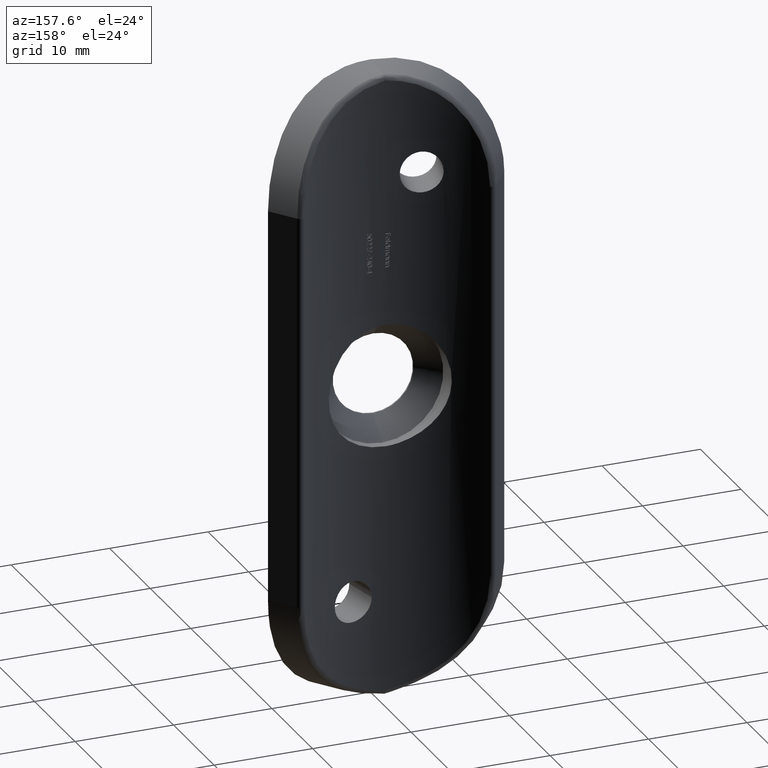
[diagram: clean part render]
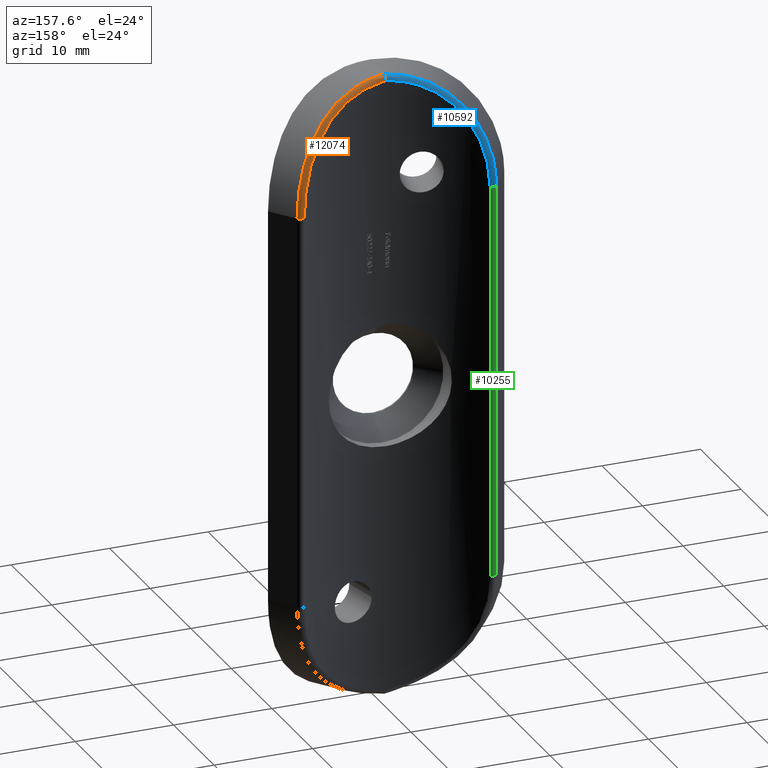
[diagram: same view with three faces highlighted in distinct colors, each labeled with its STEP entity id]
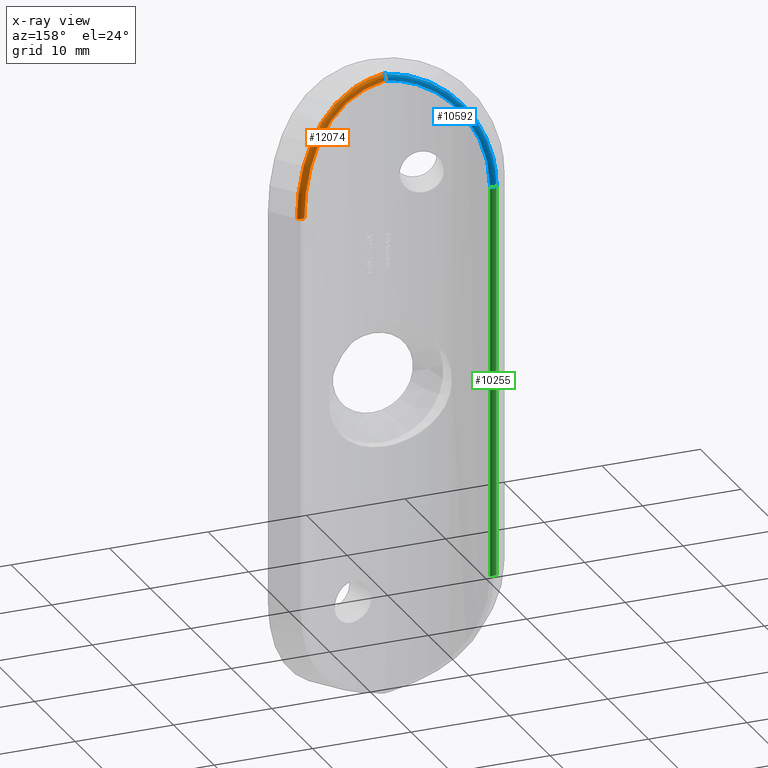
[diagram: x-ray of the same camera — body ghosted, the three highlighted faces saturated]
A machine part, auxiliary view with three faces highlighted in distinct colors.
The next image is the same camera in x-ray (body ghosted, the three faces saturated) — at least one of them is partly hidden behind the body in this view.
Their STEP definitions:

[orange] entity #12074 — the highlighted face is a freeform B-spline surface patch.
#50 = CARTESIAN_POINT ( 'NONE',  ( 9.572176795097250945, 6.108296295516240981, 23.94905101762006083 ) ) ;
#57 = CARTESIAN_POINT ( 'NONE',  ( 9.622872625073005892, 6.709967656135484404, 22.55737691705509818 ) ) ;
#92 = CARTESIAN_POINT ( 'NONE',  ( 9.236289791145132710, 5.900570151001626407, 24.97770794052638976 ) ) ;
#145 = CARTESIAN_POINT ( 'NONE',  ( 9.554211031424031830, 6.662456624294850194, 22.91443900291317348 ) ) ;
#187 = CARTESIAN_POINT ( 'NONE',  ( 9.218997879929295536, 5.890139329783062649, 25.02270815151014816 ) ) ;
#216 = CARTESIAN_POINT ( 'NONE',  ( 10.12717891536658854, 6.471195106964714228, 20.00000000000000000 ) ) ;
#235 = CARTESIAN_POINT ( 'NONE',  ( 2.655073436433441625, 3.895923824982222339, 31.17152731638226726 ) ) ;
#279 = CARTESIAN_POINT ( 'NONE',  ( 3.312259893531533272, 4.015551761706770861, 30.91518436101496192 ) ) ;
#302 = CARTESIAN_POINT ( 'NONE',  ( -2.154067083787456562E-12, 3.700000000000003286, 31.47026623506271648 ) ) ;
#320 = CARTESIAN_POINT ( 'NONE',  ( 6.245142420283990248, 4.887077536826729407, 29.03988094808996578 ) ) ;
#362 = CARTESIAN_POINT ( 'NONE',  ( 5.205480699083707030, 4.521835084770185809, 29.34296601969696283 ) ) ;
#416 = CIRCLE ( 'NONE', #2535, 0.5000000000000004441 ) ;
#444 =( BOUNDED_SURFACE ( )  B_SPLINE_SURFACE ( 3, 2, ( 
 ( #8031, #10102, #12151 ),
 ( #12057, #4185, #4096 ),
 ( #6147, #10058, #5095 ),
 ( #6061, #57, #9129 ),
 ( #12101, #145, #6102 ),
 ( #7098, #1096, #11134 ),
 ( #3122, #1191, #7144 ),
 ( #1150, #8166, #187 ),
 ( #2144, #10189, #11226 ),
 ( #11182, #6194, #9220 ),
 ( #3217, #6365, #12374 ),
 ( #5443, #8430, #9354 ),
 ( #11361, #4360, #6404 ),
 ( #3399, #4278, #6332 ),
 ( #7317, #320, #2236 ),
 ( #362, #2407, #7234 ),
 ( #7363, #10446, #1332 ),
 ( #5363, #2365, #8352 ),
 ( #12464, #3354, #6283 ),
 ( #9310, #279, #2317 ),
 ( #1368, #235, #7279 ),
 ( #8395, #9265, #9399 ),
 ( #10367, #11401, #10411 ),
 ( #1234, #9447, #5317 ) ),
 .UNSPECIFIED., .F., .F., .T. ) 
 B_SPLINE_SURFACE_WITH_KNOTS ( ( 4, 2, 2, 2, 2, 2, 2, 2, 2, 2, 2, 4 ),
 ( 3, 3 ),
 ( 0.000000000000000000, 0.002112389114971083542, 0.003168583672456625096, 0.004224778229942167083, 0.006337167344913250192, 0.007393361902398792179, 0.008449556459884334167, 0.01056194557485541641, 0.01161814013234095840, 0.01267433468982650038, 0.01478672380479758436, 0.01689911291976866833 ),
 ( 0.000000000000000000, 1.000000000000000000 ),
 .UNSPECIFIED. ) 
 GEOMETRIC_REPRESENTATION_ITEM ( )  RATIONAL_B_SPLINE_SURFACE ( (
 ( 1.000000000000000000, 0.7172232720025314423, 1.000000000000000000),
 ( 1.000000000000000000, 0.7172183501608412337, 1.000000000000000000),
 ( 1.000000000000000000, 0.7185148842174152728, 1.000000000000000000),
 ( 1.000000000000000000, 0.7220878857731577449, 1.000000000000000000),
 ( 1.000000000000000000, 0.7235490627582393808, 1.000000000000000000),
 ( 1.000000000000000000, 0.7269319563348083379, 1.000000000000000000),
 ( 1.000000000000000000, 0.7288655653429645387, 1.000000000000000000),
 ( 1.000000000000000000, 0.7350939807003735726, 1.000000000000000000),
 ( 1.000000000000000000, 0.7398153492750639826, 1.000000000000000000),
 ( 1.000000000000000000, 0.7468742275834167055, 1.000000000000000000),
 ( 1.000000000000000000, 0.7492227011589491781, 1.000000000000000000),
 ( 1.000000000000000000, 0.7537500991776644454, 1.000000000000000000),
 ( 1.000000000000000000, 0.7559211380154563509, 1.000000000000000000),
 ( 1.000000000000000000, 0.7617928543610895664, 1.000000000000000000),
 ( 1.000000000000000000, 0.7649044285686612543, 1.000000000000000000),
 ( 1.000000000000000000, 0.7675443016062143409, 1.000000000000000000),
 ( 1.000000000000000000, 0.7680869166604771259, 1.000000000000000000),
 ( 1.000000000000000000, 0.7683549639556661592, 1.000000000000000000),
 ( 1.000000000000000000, 0.7680828359206659517, 1.000000000000000000),
 ( 1.000000000000000000, 0.7659795932634994031, 1.000000000000000000),
 ( 1.000000000000000000, 0.7628586781263221317, 1.000000000000000000),
 ( 1.000000000000000000, 0.7529109112341233478, 1.000000000000000000),
 ( 1.000000000000000000, 0.7461709494799191322, 1.000000000000000000),
 ( 1.000000000000000000, 0.7379990787431908172, 1.000000000000000000) ) ) 
 REPRESENTATION_ITEM ( '' )  SURFACE ( )  );
#664 = EDGE_CURVE ( 'NONE', #7196, #9322, #416, .T. ) ;
#714 = CARTESIAN_POINT ( 'NONE',  ( 9.390755499543004703, 6.558910488688065143, 21.38376216912643102 ) ) ;
#727 = CARTESIAN_POINT ( 'NONE',  ( 9.441128890499024706, 6.593367695859268629, 20.00000000000000000 ) ) ;
#1045 = CARTESIAN_POINT ( 'NONE',  ( 6.998838513618312440, 4.749969719537173063, 28.54597954356985667 ) ) ;
#1089 = CARTESIAN_POINT ( 'NONE',  ( 8.276384315391476676, 5.363297702628000430, 26.86292557208184917 ) ) ;
#1096 = CARTESIAN_POINT ( 'NONE',  ( 9.388038383834942380, 6.549999213025272660, 23.62275142966136698 ) ) ;
#1150 = CARTESIAN_POINT ( 'NONE',  ( 8.594485261911218643, 6.054495856384555452, 24.81342864533586123 ) ) ;
#1184 = CARTESIAN_POINT ( 'NONE',  ( 9.670500822432888555, 6.170714829862242290, 23.59779996299899452 ) ) ;
#1191 = CARTESIAN_POINT ( 'NONE',  ( 9.290104061794043133, 6.484777165487949802, 23.97542067487028206 ) ) ;
#1234 = CARTESIAN_POINT ( 'NONE',  ( -0.1597076993794145361, 3.700756887896746505, 31.36828013336921117 ) ) ;
#1332 = CARTESIAN_POINT ( 'NONE',  ( 5.302934992376822088, 4.119565799163720676, 29.95470408451958377 ) ) ;
#1368 = CARTESIAN_POINT ( 'NONE',  ( 2.525070350010377496, 3.876918051528230880, 30.76810239192451846 ) ) ;
#1531 = VERTEX_POINT ( 'NONE', #3983 ) ;
#1713 = CARTESIAN_POINT ( 'NONE',  ( 7.390793985087870333, 5.406034407769334749, 27.07572169385642624 ) ) ;
#2093 = CARTESIAN_POINT ( 'NONE',  ( 7.670246256790045791, 5.059910319933140777, 27.73525308564031988 ) ) ;
#2144 = CARTESIAN_POINT ( 'NONE',  ( 8.330846162076598560, 5.899050358616710454, 25.44346187952711347 ) ) ;
#2234 = EDGE_LOOP ( 'NONE', ( #2993, #7021, #7029, #10898 ) ) ;
#2236 = CARTESIAN_POINT ( 'NONE',  ( 6.434489455530427726, 4.514859975475179255, 29.09591892318240625 ) ) ;
#2317 = CARTESIAN_POINT ( 'NONE',  ( 3.417693122737476052, 3.614533170411150742, 30.98228990465367971 ) ) ;
#2365 = CARTESIAN_POINT ( 'NONE',  ( 4.552356721937372619, 4.322414875989259109, 30.26907346118207442 ) ) ;
#2407 = CARTESIAN_POINT ( 'NONE',  ( 5.430277632865304405, 4.594655389540906576, 29.68749767993011091 ) ) ;
#2535 = AXIS2_PLACEMENT_3D ( 'NONE', #7385, #8321, #10340 ) ;
#2724 = CARTESIAN_POINT ( 'NONE',  ( 1.367225302750658678, 3.752117385400979721, 31.09434416446330118 ) ) ;
#2768 = CARTESIAN_POINT ( 'NONE',  ( 3.323786737820741521, 4.019659497945220039, 30.45339368198925456 ) ) ;
#2812 = CARTESIAN_POINT ( 'NONE',  ( 2.694734062044981115, 3.903594808067625266, 30.70712680308379561 ) ) ;
#2818 = CARTESIAN_POINT ( 'NONE',  ( -2.450987520852121701E-15, 3.700000000000003286, 31.34717079002204798 ) ) ;
#2993 = ORIENTED_EDGE ( 'NONE', *, *, #8098, .F. ) ;
#3112 = CARTESIAN_POINT ( 'NONE',  ( 4.786837390412624238, 3.962737914211535539, 30.28040607774899229 ) ) ;
#3122 = CARTESIAN_POINT ( 'NONE',  ( 8.913713998312255526, 6.250217411443363069, 23.82000786858119312 ) ) ;
#3217 = CARTESIAN_POINT ( 'NONE',  ( 7.680747283973444084, 5.550916138595863636, 26.63195390668528262 ) ) ;
#3354 = CARTESIAN_POINT ( 'NONE',  ( 4.248043158263772767, 4.240026105351319075, 30.44184560537856754 ) ) ;
#3399 = CARTESIAN_POINT ( 'NONE',  ( 6.464057186993422022, 4.982197667740843272, 28.24952935848845570 ) ) ;
#3487 = CARTESIAN_POINT ( 'NONE',  ( 5.088102286212706105, 4.477399621899655457, 29.44991674319914310 ) ) ;
#3742 = CARTESIAN_POINT ( 'NONE',  ( 0.6882995487741749852, 3.710629195439429928, 31.24005674687349554 ) ) ;
#3983 = CARTESIAN_POINT ( 'NONE',  ( -7.645952399552847496E-15, 3.246240496244443108, 31.84933095981319795 ) ) ;
#4086 = CARTESIAN_POINT ( 'NONE',  ( 5.389221191223329654, 4.147455033844807737, 29.89592279680632814 ) ) ;
#4096 = CARTESIAN_POINT ( 'NONE',  ( 10.12717891535318770, 6.471195106983338441, 20.74517318503690078 ) ) ;
#4128 = CARTESIAN_POINT ( 'NONE',  ( 5.677826046268694249, 4.244325353752462782, 29.68976629026787606 ) ) ;
#4185 = CARTESIAN_POINT ( 'NONE',  ( 9.843504435170283173, 6.865559389123453649, 20.74431903134730248 ) ) ;
#4222 = CARTESIAN_POINT ( 'NONE',  ( 10.07148329003814524, 6.433007344359092272, 21.46472306259698470 ) ) ;
#4278 = CARTESIAN_POINT ( 'NONE',  ( 6.737421799888970497, 5.095152791214074384, 28.55598470112045817 ) ) ;
#4360 = CARTESIAN_POINT ( 'NONE',  ( 7.400310208777267640, 5.406523281998669717, 27.75515746705363185 ) ) ;
#4452 = CARTESIAN_POINT ( 'NONE',  ( -2.450987520852121701E-15, 3.700000000000003286, 31.34717079002204798 ) ) ;
#4496 = CARTESIAN_POINT ( 'NONE',  ( 1.704901066415754229, 3.783178991725382190, 31.00770133067764434 ) ) ;
#4532 = CARTESIAN_POINT ( 'NONE',  ( 6.573486520757318985, 5.028437660848530832, 28.13102504643976687 ) ) ;
#4845 = CARTESIAN_POINT ( 'NONE',  ( 4.518421924977060300, 4.305506203630955930, 29.82728971149956010 ) ) ;
#5040 = CARTESIAN_POINT ( 'NONE',  ( 8.457785709454658019, 5.459738984517018778, 26.56093233363199957 ) ) ;
#5095 = CARTESIAN_POINT ( 'NONE',  ( 10.07041464303441991, 6.432266416090543615, 21.47876688617445495 ) ) ;
#5173 = CARTESIAN_POINT ( 'NONE',  ( 10.12717891536658854, 6.471195106964714228, 20.00000000000000000 ) ) ;
#5256 = CARTESIAN_POINT ( 'NONE',  ( -8.061543401270249684E-15, 3.370570008494097269, 31.83771647552079287 ) ) ;
#5317 = CARTESIAN_POINT ( 'NONE',  ( -0.1031890159129511125, 3.244843353383991769, 31.86255318264612768 ) ) ;
#5363 = CARTESIAN_POINT ( 'NONE',  ( 4.357520843894875817, 4.270470587782710936, 29.90439521725557626 ) ) ;
#5443 = CARTESIAN_POINT ( 'NONE',  ( 7.305433712179773664, 5.364578247587369120, 27.19772655051392363 ) ) ;
#5538 = B_SPLINE_CURVE_WITH_KNOTS ( 'NONE', 3,
 ( #5173, #9068, #4222, #6092, #12180, #1184, #50, #92, #7090, #5040, #1089, #8207, #2093, #1045, #11219, #4128, #4086, #3112, #12047, #12226, #9121, #9253, #10140, #6052, #7046, #11124 ),
 .UNSPECIFIED., .F., .F.,
 ( 4, 2, 2, 2, 2, 2, 2, 2, 2, 2, 2, 2, 4 ),
 ( 0.000000000000000000, 0.002183140656762440953, 0.003274710985143656442, 0.004366281313524871498, 0.006549421970287312884, 0.007640992298668537915, 0.008732562627049762077, 0.01091570328381222255, 0.01200727361219344758, 0.01309884394057467261, 0.01528198459733712787, 0.01637355492571835464, 0.01746512525409957967 ),
 .UNSPECIFIED. ) ;
#5759 = CARTESIAN_POINT ( 'NONE',  ( 9.178189490185200583, 6.418778742075952337, 22.73567650817570751 ) ) ;
#6052 = CARTESIAN_POINT ( 'NONE',  ( 0.7289297493280589846, 3.269291098129510686, 31.74079200779239684 ) ) ;
#6061 = CARTESIAN_POINT ( 'NONE',  ( 9.231096701963281248, 6.453429694968797925, 22.45554542169613299 ) ) ;
#6092 = CARTESIAN_POINT ( 'NONE',  ( 9.906032413744748411, 6.323334164646677635, 22.53821986203080741 ) ) ;
#6102 = CARTESIAN_POINT ( 'NONE',  ( 9.831477894495201042, 6.274356396529928936, 22.92067117943873811 ) ) ;
#6147 = CARTESIAN_POINT ( 'NONE',  ( 9.388260988252326911, 6.557186903299271563, 21.41715159925862721 ) ) ;
#6194 = CARTESIAN_POINT ( 'NONE',  ( 8.181964492226423857, 5.813942122183399341, 26.58703216341210407 ) ) ;
#6283 = CARTESIAN_POINT ( 'NONE',  ( 4.380455618659364170, 3.850290080321210340, 30.50847333824152230 ) ) ;
#6313 = CARTESIAN_POINT ( 'NONE',  ( -7.712787977882866948E-15, 3.487434822499352993, 31.77818176520318261 ) ) ;
#6332 = CARTESIAN_POINT ( 'NONE',  ( 6.939742083231108083, 4.724440944664905828, 28.60820454765874388 ) ) ;
#6365 = CARTESIAN_POINT ( 'NONE',  ( 8.001808241817775169, 5.715178531979013599, 26.88796926372442186 ) ) ;
#6404 = CARTESIAN_POINT ( 'NONE',  ( 7.622776465851924144, 5.037261369585348092, 27.79640580425790475 ) ) ;
#6765 = CARTESIAN_POINT ( 'NONE',  ( 9.441128890499024706, 6.593367695859271294, 20.69690007560871692 ) ) ;
#6859 = CARTESIAN_POINT ( 'NONE',  ( 6.112227243406861632, 4.838286346994823184, 28.60283433195983349 ) ) ;
#7021 = ORIENTED_EDGE ( 'NONE', *, *, #11348, .F. ) ;
#7029 = ORIENTED_EDGE ( 'NONE', *, *, #664, .F. ) ;
#7046 = CARTESIAN_POINT ( 'NONE',  ( 0.3660558530732861415, 3.252240755034904840, 31.80123139863307813 ) ) ;
#7054 = FACE_OUTER_BOUND ( 'NONE', #2234, .T. ) ;
#7090 = CARTESIAN_POINT ( 'NONE',  ( 8.959022801026884864, 5.735262522138841135, 25.63046673744610615 ) ) ;
#7098 = CARTESIAN_POINT ( 'NONE',  ( 9.007230978121352649, 6.309173743307709081, 23.48033436952827913 ) ) ;
#7144 = CARTESIAN_POINT ( 'NONE',  ( 9.561271081964957119, 6.101431126787494108, 23.98609516728748758 ) ) ;
#7196 = VERTEX_POINT ( 'NONE', #727 ) ;
#7234 = CARTESIAN_POINT ( 'NONE',  ( 5.596917564465210937, 4.216680486108523418, 29.74918193355709661 ) ) ;
#7279 = CARTESIAN_POINT ( 'NONE',  ( 2.744203370800732955, 3.485897602487152191, 31.23628075727310360 ) ) ;
#7317 = CARTESIAN_POINT ( 'NONE',  ( 5.990859275755803459, 4.791240386012654007, 28.71692230130697610 ) ) ;
#7363 = CARTESIAN_POINT ( 'NONE',  ( 4.929672936096989311, 4.434498439969700279, 29.53992474727067830 ) ) ;
#7385 = CARTESIAN_POINT ( 'NONE',  ( 9.721281083095435704, 6.179224304045003890, 20.00000000000000000 ) ) ;
#7820 = CARTESIAN_POINT ( 'NONE',  ( 7.919200436628644368, 5.675888310944748660, 26.22421893530745152 ) ) ;
#7868 = CARTESIAN_POINT ( 'NONE',  ( 9.026933551425223357, 6.321681504256939199, 23.40300639677786521 ) ) ;
#8031 = CARTESIAN_POINT ( 'NONE',  ( 9.441128890499024706, 6.593367695859267741, 20.00000000000000000 ) ) ;
#8098 = EDGE_CURVE ( 'NONE', #1531, #12030, #11852, .T. ) ;
#8166 = CARTESIAN_POINT ( 'NONE',  ( 8.956639281650057072, 6.269015175937852291, 25.00348072179771464 ) ) ;
#8207 = CARTESIAN_POINT ( 'NONE',  ( 7.882756202702052128, 5.163412005056858156, 27.45012701642542297 ) ) ;
#8321 = DIRECTION ( 'NONE',  ( 0.000000000000000000, 0.000000000000000000, -1.000000000000000000 ) ) ;
#8352 = CARTESIAN_POINT ( 'NONE',  ( 4.693443916163001717, 3.936024431621539588, 30.33502109585564099 ) ) ;
#8395 = CARTESIAN_POINT ( 'NONE',  ( 1.198863133981458828, 3.729465849178961623, 31.14905915330259845 ) ) ;
#8430 = CARTESIAN_POINT ( 'NONE',  ( 7.610821824257547163, 5.511368167900808857, 27.47231910664271837 ) ) ;
#8519 = CARTESIAN_POINT ( 'NONE',  ( 9.240722277303360599, 6.459749986775098485, 22.39952579968480251 ) ) ;
#8728 = EDGE_CURVE ( 'NONE', #12030, #7196, #12577, .T. ) ;
#9068 = CARTESIAN_POINT ( 'NONE',  ( 10.12717891536658854, 6.471195106964714228, 20.73807937200532336 ) ) ;
#9121 = CARTESIAN_POINT ( 'NONE',  ( 2.855553897046666734, 3.505190841350648956, 31.19724926842518542 ) ) ;
#9129 = CARTESIAN_POINT ( 'NONE',  ( 9.901747976992171019, 6.320511102704859496, 22.56230826612193141 ) ) ;
#9220 = CARTESIAN_POINT ( 'NONE',  ( 8.425465550075101007, 5.442395916703796743, 26.61651657188186348 ) ) ;
#9253 = CARTESIAN_POINT ( 'NONE',  ( 1.805319957109083884, 3.362487134309513515, 31.50432257375954137 ) ) ;
#9265 = CARTESIAN_POINT ( 'NONE',  ( 1.288476997402278723, 3.734817693282244555, 31.57780764987159472 ) ) ;
#9310 = CARTESIAN_POINT ( 'NONE',  ( 3.158723321628903236, 3.987152358610829950, 30.52469449262834544 ) ) ;
#9322 = VERTEX_POINT ( 'NONE', #216 ) ;
#9354 = CARTESIAN_POINT ( 'NONE',  ( 7.839023256754628299, 5.141861111224878655, 27.51067118324542449 ) ) ;
#9399 = CARTESIAN_POINT ( 'NONE',  ( 1.336386579908537930, 3.303674164203194152, 31.63380085513780315 ) ) ;
#9447 = CARTESIAN_POINT ( 'NONE',  ( -0.1038594716657261358, 3.700227523348841530, 31.82203917899957446 ) ) ;
#9539 = CARTESIAN_POINT ( 'NONE',  ( 8.631763027774573160, 6.076833947390412938, 24.71320611330039085 ) ) ;
#10058 = CARTESIAN_POINT ( 'NONE',  ( 9.788245534399658609, 6.825482669167993066, 21.47462622430382950 ) ) ;
#10102 = CARTESIAN_POINT ( 'NONE',  ( 9.843504435944554487, 6.865559389682786673, 19.99999999999999645 ) ) ;
#10140 = CARTESIAN_POINT ( 'NONE',  ( 1.447866623082514570, 3.324309759526063335, 31.59255130478875984 ) ) ;
#10189 = CARTESIAN_POINT ( 'NONE',  ( 8.681696485090737880, 6.098051764244927675, 25.65600455010457992 ) ) ;
#10340 = DIRECTION ( 'NONE',  ( -1.000000000000000000, 0.000000000000000000, 0.000000000000000000 ) ) ;
#10367 = CARTESIAN_POINT ( 'NONE',  ( 0.5191972221103020591, 3.694321801027438124, 31.28223394451422479 ) ) ;
#10393 = CARTESIAN_POINT ( 'NONE',  ( -6.861360927792423008E-15, 3.652939286852961320, 31.59433275640968830 ) ) ;
#10411 = CARTESIAN_POINT ( 'NONE',  ( 0.6157454464492267965, 3.252526754861048808, 31.77276699308611541 ) ) ;
#10446 = CARTESIAN_POINT ( 'NONE',  ( 5.144399819333015600, 4.499971324869202149, 29.89142733760735737 ) ) ;
#10489 = CARTESIAN_POINT ( 'NONE',  ( 8.378594580731050456, 5.926614987366911613, 25.33525098918110530 ) ) ;
#10760 = CARTESIAN_POINT ( 'NONE',  ( 9.441128890499024706, 6.593367695859268629, 20.00000000000000000 ) ) ;
#10898 = ORIENTED_EDGE ( 'NONE', *, *, #8728, .F. ) ;
#11124 = CARTESIAN_POINT ( 'NONE',  ( -7.645952399552847496E-15, 3.246240496244443108, 31.84933095981319795 ) ) ;
#11134 = CARTESIAN_POINT ( 'NONE',  ( 9.661573247027943623, 6.165021526608329694, 23.63165325520085247 ) ) ;
#11182 = CARTESIAN_POINT ( 'NONE',  ( 7.853571678762480524, 5.641055782545374875, 26.34082838136357196 ) ) ;
#11219 = CARTESIAN_POINT ( 'NONE',  ( 6.501984363770556108, 4.541767708968576400, 29.03411875496052730 ) ) ;
#11226 = CARTESIAN_POINT ( 'NONE',  ( 8.936458659318645914, 5.722113284888708407, 25.68013413511027920 ) ) ;
#11348 = EDGE_CURVE ( 'NONE', #9322, #1531, #5538, .T. ) ;
#11361 = CARTESIAN_POINT ( 'NONE',  ( 7.103192067733146153, 5.268584370479723056, 27.47155556225607498 ) ) ;
#11385 = CARTESIAN_POINT ( 'NONE',  ( -7.645952399552847496E-15, 3.246240496244443108, 31.84933095981319795 ) ) ;
#11401 = CARTESIAN_POINT ( 'NONE',  ( 0.5859781650385513796, 3.695914644390478898, 31.72361271779824321 ) ) ;
#11538 = CARTESIAN_POINT ( 'NONE',  ( 8.937682158469103300, 6.265229096247154850, 23.73577741699183363 ) ) ;
#11805 = CARTESIAN_POINT ( 'NONE',  ( 7.194680652232963602, 5.311533839192657425, 27.34993409781857920 ) ) ;
#11852 = B_SPLINE_CURVE_WITH_KNOTS ( 'NONE', 3,
 ( #11385, #5256, #6313, #10393, #302, #12214 ),
 .UNSPECIFIED., .F., .F.,
 ( 4, 2, 4 ),
 ( 2.168404344971008868E-18, 0.0003692731621165210401, 0.0007385463242330399117 ),
 .UNSPECIFIED. ) ;
#11853 = CARTESIAN_POINT ( 'NONE',  ( 7.752703595076254395, 5.588077778722110978, 26.51314792266511589 ) ) ;
#12030 = VERTEX_POINT ( 'NONE', #2818 ) ;
#12047 = CARTESIAN_POINT ( 'NONE',  ( 4.477211699115454024, 3.876148234274339632, 30.45618376487040990 ) ) ;
#12057 = CARTESIAN_POINT ( 'NONE',  ( 9.441128889761488452, 6.593367695360352165, 20.71412430232121693 ) ) ;
#12074 = ADVANCED_FACE ( 'NONE', ( #7054 ), #444, .T. ) ;
#12101 = CARTESIAN_POINT ( 'NONE',  ( 9.165610985584153880, 6.410589912324327955, 22.79897654700132748 ) ) ;
#12151 = CARTESIAN_POINT ( 'NONE',  ( 10.12717891536658676, 6.471195106964711563, 20.00000000000000000 ) ) ;
#12180 = CARTESIAN_POINT ( 'NONE',  ( 9.837107706626525783, 6.278035596462827606, 22.89328904128677422 ) ) ;
#12214 = CARTESIAN_POINT ( 'NONE',  ( -2.450987520852121701E-15, 3.700000000000003286, 31.34717079002204798 ) ) ;
#12226 = CARTESIAN_POINT ( 'NONE',  ( 3.523794955830233722, 3.637066460458416195, 30.93751904557932519 ) ) ;
#12374 = CARTESIAN_POINT ( 'NONE',  ( 8.240501058235885523, 5.344537787058599498, 26.92029972861461928 ) ) ;
#12379 = CARTESIAN_POINT ( 'NONE',  ( 0.3456293382777865797, 3.700000000000002398, 31.29959470430786084 ) ) ;
#12464 = CARTESIAN_POINT ( 'NONE',  ( 4.063543603126184678, 4.194393862069479617, 30.07062028214717131 ) ) ;
#12577 = B_SPLINE_CURVE_WITH_KNOTS ( 'NONE', 3,
 ( #4452, #12379, #3742, #2724, #4496, #2812, #2768, #4845, #3487, #6859, #4532, #11805, #1713, #11853, #7820, #10489, #9539, #11538, #7868, #5759, #8519, #714, #6765, #10760 ),
 .UNSPECIFIED., .F., .F.,
 ( 4, 2, 2, 2, 2, 2, 2, 2, 2, 2, 2, 4 ),
 ( 0.000000000000000000, 0.001043312271240548266, 0.002086624542481096533, 0.004173249084962192199, 0.006259873627443289165, 0.008346498169924386132, 0.009389810441164932880, 0.01043312271240548136, 0.01251974725488657486, 0.01356305952612712508, 0.01460637179736767703, 0.01669299633984879308 ),
 .UNSPECIFIED. ) ;

[blue] entity #10592 — the highlighted face is a freeform B-spline surface patch.
#17 = CARTESIAN_POINT ( 'NONE',  ( -10.12717891536658854, 6.471195106964713339, 20.73807937200530915 ) ) ;
#36 = CARTESIAN_POINT ( 'NONE',  ( -9.007230978120791320, 6.309173743307353810, 23.48033436952827913 ) ) ;
#78 = CARTESIAN_POINT ( 'NONE',  ( -8.425465550075438514, 5.442395916704209746, 26.61651657188104281 ) ) ;
#123 = CARTESIAN_POINT ( 'NONE',  ( -9.843504435944561592, 6.865559389682790226, 19.99999999999999645 ) ) ;
#300 = CARTESIAN_POINT ( 'NONE',  ( -0.5191972221108674956, 3.694321801027435903, 31.28223394451429229 ) ) ;
#302 = CARTESIAN_POINT ( 'NONE',  ( -2.154067083787456562E-12, 3.700000000000003286, 31.47026623506271648 ) ) ;
#377 = CARTESIAN_POINT ( 'NONE',  ( -6.998838513618322210, 4.749969719537173951, 28.54597954356985312 ) ) ;
#609 = VERTEX_POINT ( 'NONE', #10078 ) ;
#680 = CARTESIAN_POINT ( 'NONE',  ( -2.450987520852121701E-15, 3.700000000000003286, 31.34717079002204798 ) ) ;
#949 = CARTESIAN_POINT ( 'NONE',  ( -9.441128890499030035, 6.593367695859272182, 20.00000000000000000 ) ) ;
#990 = CARTESIAN_POINT ( 'NONE',  ( -4.380455618659191863, 3.850290080320927455, 30.50847333824168572 ) ) ;
#1034 = CARTESIAN_POINT ( 'NONE',  ( -9.290104061794288270, 6.484777165487911610, 23.97542067487112760 ) ) ;
#1213 = CARTESIAN_POINT ( 'NONE',  ( -0.6157454464494315216, 3.252526754856334357, 31.77276699308650976 ) ) ;
#1257 = CARTESIAN_POINT ( 'NONE',  ( -3.417693122737865075, 3.614533170411730723, 30.98228990465334931 ) ) ;
#1310 = CARTESIAN_POINT ( 'NONE',  ( -3.312259893531783295, 4.015551761706598555, 30.91518436101468481 ) ) ;
#1345 = CARTESIAN_POINT ( 'NONE',  ( -3.523794955830248377, 3.637066460458415751, 30.93751904557931098 ) ) ;
#1374 = ORIENTED_EDGE ( 'NONE', *, *, #2351, .F. ) ;
#1503 = CARTESIAN_POINT ( 'NONE',  ( -4.477211699115466459, 3.876148234274339188, 30.45618376487040990 ) ) ;
#1531 = VERTEX_POINT ( 'NONE', #3983 ) ;
#1607 = CARTESIAN_POINT ( 'NONE',  ( -6.112227243406866961, 4.838286346994824072, 28.60283433195983704 ) ) ;
#1643 = CARTESIAN_POINT ( 'NONE',  ( -7.194680652232966267, 5.311533839192660977, 27.34993409781857565 ) ) ;
#1751 = FACE_OUTER_BOUND ( 'NONE', #10783, .T. ) ;
#1913 = CARTESIAN_POINT ( 'NONE',  ( -8.001808241818482159, 5.715178531978748033, 26.88796926372306828 ) ) ;
#1983 = CARTESIAN_POINT ( 'NONE',  ( -7.610821824257018697, 5.511368167901161463, 27.47231910664381971 ) ) ;
#2028 = CARTESIAN_POINT ( 'NONE',  ( -8.936458659317986886, 5.722113284887890394, 25.68013413511192766 ) ) ;
#2080 = CARTESIAN_POINT ( 'NONE',  ( -9.831477894495177949, 6.274356396530086144, 22.92067117943851429 ) ) ;
#2103 = VERTEX_POINT ( 'NONE', #2750 ) ;
#2143 = CARTESIAN_POINT ( 'NONE',  ( -10.12717891536659387, 6.471195106964717780, 20.00000000000000000 ) ) ;
#2335 = CARTESIAN_POINT ( 'NONE',  ( -7.670246256790055561, 5.059910319933142553, 27.73525308564032343 ) ) ;
#2351 = EDGE_CURVE ( 'NONE', #2103, #609, #7602, .T. ) ;
#2462 = CARTESIAN_POINT ( 'NONE',  ( -7.645952399552847496E-15, 3.246240496244443108, 31.84933095981319795 ) ) ;
#2514 = CARTESIAN_POINT ( 'NONE',  ( -9.441128890499028259, 6.593367695859273958, 20.00000000000000000 ) ) ;
#2595 = CARTESIAN_POINT ( 'NONE',  ( -8.631763027774574937, 6.076833947390417379, 24.71320611330039441 ) ) ;
#2750 = CARTESIAN_POINT ( 'NONE',  ( -10.12717891536659387, 6.471195106964717780, 20.00000000000000000 ) ) ;
#2818 = CARTESIAN_POINT ( 'NONE',  ( -2.450987520852121701E-15, 3.700000000000003286, 31.34717079002204798 ) ) ;
#2925 = CARTESIAN_POINT ( 'NONE',  ( -4.552356721937646178, 4.322414875989093019, 30.26907346118333919 ) ) ;
#2961 = CARTESIAN_POINT ( 'NONE',  ( -10.12717891534915715, 6.471195106988957946, 20.74517318503774277 ) ) ;
#3010 = CARTESIAN_POINT ( 'NONE',  ( -9.165610985584725867, 6.410589912324697437, 22.79897654700132748 ) ) ;
#3097 = CARTESIAN_POINT ( 'NONE',  ( -8.956639281649165341, 6.269015175937677320, 25.00348072179736647 ) ) ;
#3123 = EDGE_CURVE ( 'NONE', #1531, #2103, #5776, .T. ) ;
#3146 = CARTESIAN_POINT ( 'NONE',  ( -0.5859781650390450958, 3.695914644384895364, 31.72361271779832137 ) ) ;
#3370 = CARTESIAN_POINT ( 'NONE',  ( -8.276384315391480229, 5.363297702628003982, 26.86292557208185627 ) ) ;
#3451 = CARTESIAN_POINT ( 'NONE',  ( -0.3660558530732994087, 3.252240755034910169, 31.80123139863308523 ) ) ;
#3540 = CARTESIAN_POINT ( 'NONE',  ( -6.501984363770561437, 4.541767708968579953, 29.03411875496051664 ) ) ;
#3590 = CARTESIAN_POINT ( 'NONE',  ( -9.240722277303362375, 6.459749986775098485, 22.39952579968479185 ) ) ;
#3633 = CARTESIAN_POINT ( 'NONE',  ( -5.088102286212713210, 4.477399621899654569, 29.44991674319914665 ) ) ;
#3917 =( BOUNDED_SURFACE ( )  B_SPLINE_SURFACE ( 3, 2, ( 
 ( #8977, #123, #949 ),
 ( #2961, #3953, #7031 ),
 ( #4951, #5999, #6127 ),
 ( #4985, #10944, #8095 ),
 ( #2080, #7962, #3010 ),
 ( #10030, #7123, #36 ),
 ( #11955, #1034, #5955 ),
 ( #4072, #3097, #8047 ),
 ( #2028, #5116, #9056 ),
 ( #78, #11064, #12032 ),
 ( #10126, #1913, #12967 ),
 ( #11993, #1983, #8010 ),
 ( #7077, #5073, #4117 ),
 ( #11106, #13003, #9990 ),
 ( #6955, #3992, #12126 ),
 ( #11027, #7928, #5026 ),
 ( #12077, #10986, #6993 ),
 ( #8932, #2925, #9951 ),
 ( #990, #4028, #12264 ),
 ( #1257, #1310, #6350 ),
 ( #6312, #7302, #4161 ),
 ( #11159, #10301, #10210 ),
 ( #1213, #3146, #300 ),
 ( #9333, #8141, #4341 ) ),
 .UNSPECIFIED., .F., .F., .T. ) 
 B_SPLINE_SURFACE_WITH_KNOTS ( ( 4, 2, 2, 2, 2, 2, 2, 2, 2, 2, 2, 4 ),
 ( 3, 3 ),
 ( 0.000000000000000000, 0.002112389114971082674, 0.003168583672456624228, 0.004224778229942165349, 0.006337167344913248457, 0.007393361902398789577, 0.008449556459884330697, 0.01056194557485541294, 0.01161814013234095493, 0.01267433468982649691, 0.01478672380479757915, 0.01689911291976866139 ),
 ( 0.000000000000000000, 1.000000000000000000 ),
 .UNSPECIFIED. ) 
 GEOMETRIC_REPRESENTATION_ITEM ( )  RATIONAL_B_SPLINE_SURFACE ( (
 ( 1.000000000000000000, 0.7172232720025314423, 1.000000000000000000),
 ( 1.000000000000000000, 0.7172183501610744916, 1.000000000000000000),
 ( 1.000000000000000000, 0.7185148842171017458, 1.000000000000000000),
 ( 1.000000000000000000, 0.7220878857733133982, 1.000000000000000000),
 ( 1.000000000000000000, 0.7235490627579046485, 1.000000000000000000),
 ( 1.000000000000000000, 0.7269319563351419600, 1.000000000000000000),
 ( 1.000000000000000000, 0.7288655653434361614, 1.000000000000000000),
 ( 1.000000000000000000, 0.7350939806994254422, 1.000000000000000000),
 ( 1.000000000000000000, 0.7398153492744390380, 1.000000000000000000),
 ( 1.000000000000000000, 0.7468742275837306765, 1.000000000000000000),
 ( 1.000000000000000000, 0.7492227011586324315, 1.000000000000000000),
 ( 1.000000000000000000, 0.7537500991779796378, 1.000000000000000000),
 ( 1.000000000000000000, 0.7559211380151420467, 1.000000000000000000),
 ( 1.000000000000000000, 0.7617928543617173975, 1.000000000000000000),
 ( 1.000000000000000000, 0.7649044285688965106, 1.000000000000000000),
 ( 1.000000000000000000, 0.7675443016060967683, 1.000000000000000000),
 ( 1.000000000000000000, 0.7680869166605979181, 1.000000000000000000),
 ( 1.000000000000000000, 0.7683549639555495858, 1.000000000000000000),
 ( 1.000000000000000000, 0.7680828359203328848, 1.000000000000000000),
 ( 1.000000000000000000, 0.7659795932641648708, 1.000000000000000000),
 ( 1.000000000000000000, 0.7628586781262038929, 1.000000000000000000),
 ( 1.000000000000000000, 0.7529109112342424748, 1.000000000000000000),
 ( 1.000000000000000000, 0.7461709494798292042, 1.000000000000000000),
 ( 1.000000000000000000, 0.7379990787431910393, 1.000000000000000000) ) ) 
 REPRESENTATION_ITEM ( '' )  SURFACE ( )  );
#3953 = CARTESIAN_POINT ( 'NONE',  ( -9.843504435167812261, 6.865559389129342271, 20.74431903134705024 ) ) ;
#3983 = CARTESIAN_POINT ( 'NONE',  ( -7.645952399552847496E-15, 3.246240496244443108, 31.84933095981319795 ) ) ;
#3992 = CARTESIAN_POINT ( 'NONE',  ( -6.245142420285371365, 4.887077536827287183, 29.03988094809010079 ) ) ;
#4028 = CARTESIAN_POINT ( 'NONE',  ( -4.248043158264073860, 4.240026105351507368, 30.44184560537849649 ) ) ;
#4071 = DIRECTION ( 'NONE',  ( -1.000000000000000000, 0.000000000000000000, 0.000000000000000000 ) ) ;
#4072 = CARTESIAN_POINT ( 'NONE',  ( -9.218997879930272532, 5.890139329782229538, 25.02270815150938432 ) ) ;
#4117 = CARTESIAN_POINT ( 'NONE',  ( -7.103192067733069770, 5.268584370479689305, 27.47155556225607498 ) ) ;
#4161 = CARTESIAN_POINT ( 'NONE',  ( -2.525070350011269227, 3.876918051528334797, 30.76810239192575480 ) ) ;
#4341 = CARTESIAN_POINT ( 'NONE',  ( 0.1597076993793999922, 3.700756887896749170, 31.36828013336921117 ) ) ;
#4633 = CARTESIAN_POINT ( 'NONE',  ( -3.323786737820750403, 4.019659497945218263, 30.45339368198923680 ) ) ;
#4848 = CARTESIAN_POINT ( 'NONE',  ( -9.906032413744753740, 6.323334164646680300, 22.53821986203081451 ) ) ;
#4951 = CARTESIAN_POINT ( 'NONE',  ( -10.07041464303617140, 6.432266416088475047, 21.47876688617335361 ) ) ;
#4985 = CARTESIAN_POINT ( 'NONE',  ( -9.901747976991309486, 6.320511102705895112, 22.56230826612248563 ) ) ;
#5025 = CARTESIAN_POINT ( 'NONE',  ( -9.721281083095439257, 6.179224304045008331, 20.00000000000000000 ) ) ;
#5026 = CARTESIAN_POINT ( 'NONE',  ( -5.205480699083029350, 4.521835084769952218, 29.34296601969696283 ) ) ;
#5073 = CARTESIAN_POINT ( 'NONE',  ( -7.400310208777063359, 5.406523281999486841, 27.75515746705228182 ) ) ;
#5116 = CARTESIAN_POINT ( 'NONE',  ( -8.681696485090407478, 6.098051764245091988, 25.65600455010405057 ) ) ;
#5194 = B_SPLINE_CURVE_WITH_KNOTS ( 'NONE', 3,
 ( #2514, #9597, #7644, #3590, #12703, #6557, #10599, #2595, #8613, #8537, #5556, #10638, #1643, #7605, #1607, #3633, #11675, #4633, #8662, #6685, #8573, #5597, #5688, #680 ),
 .UNSPECIFIED., .F., .F.,
 ( 4, 2, 2, 2, 2, 2, 2, 2, 2, 2, 2, 4 ),
 ( 0.000000000000000000, 0.002062967759200316081, 0.003094451638800468484, 0.004125935518400621754, 0.006188903277600929162, 0.007220387157201081131, 0.008251871036801234835, 0.01031483879600153183, 0.01237780655520182883, 0.01444077431440212583, 0.01547225819400227867, 0.01650374207360242804 ),
 .UNSPECIFIED. ) ;
#5256 = CARTESIAN_POINT ( 'NONE',  ( -8.061543401270249684E-15, 3.370570008494097269, 31.83771647552079287 ) ) ;
#5377 = CARTESIAN_POINT ( 'NONE',  ( -8.457785709454670453, 5.459738984517022331, 26.56093233363199957 ) ) ;
#5502 = CARTESIAN_POINT ( 'NONE',  ( -5.389221191223335872, 4.147455033844809513, 29.89592279680631393 ) ) ;
#5556 = CARTESIAN_POINT ( 'NONE',  ( -7.752703595076260612, 5.588077778722112754, 26.51314792266512299 ) ) ;
#5597 = CARTESIAN_POINT ( 'NONE',  ( -0.6882995487741838669, 3.710629195439429928, 31.24005674687348488 ) ) ;
#5688 = CARTESIAN_POINT ( 'NONE',  ( -0.3456293382777897438, 3.700000000000001954, 31.29959470430786794 ) ) ;
#5776 = B_SPLINE_CURVE_WITH_KNOTS ( 'NONE', 3,
 ( #2462, #3451, #11465, #12437, #6463, #11543, #1345, #1503, #8371, #5502, #9550, #3540, #377, #2335, #9369, #3370, #5377, #12388, #6381, #7381, #10888, #9972, #4848, #6862, #17, #2143 ),
 .UNSPECIFIED., .F., .F.,
 ( 4, 2, 2, 2, 2, 2, 2, 2, 2, 2, 2, 2, 4 ),
 ( 6.720386226758006326E-19, 0.001104099780465673088, 0.002208199560931345742, 0.004416399121862693219, 0.005520498902328365223, 0.006624598682794038094, 0.008832798243725374296, 0.009936898024191037626, 0.01104099780465670443, 0.01324919736558804496, 0.01435329714605371176, 0.01545739692651938203, 0.01766559648745071043 ),
 .UNSPECIFIED. ) ;
#5955 = CARTESIAN_POINT ( 'NONE',  ( -8.913713998312688958, 6.250217411443633964, 23.82000786858181129 ) ) ;
#5999 = CARTESIAN_POINT ( 'NONE',  ( -9.788245534400941139, 6.825482669166187399, 21.47462622430351331 ) ) ;
#6127 = CARTESIAN_POINT ( 'NONE',  ( -9.388260988251778016, 6.557186903298904745, 21.41715159925740508 ) ) ;
#6312 = CARTESIAN_POINT ( 'NONE',  ( -2.744203370800835096, 3.485897602487904479, 31.23628075727293307 ) ) ;
#6313 = CARTESIAN_POINT ( 'NONE',  ( -7.712787977882866948E-15, 3.487434822499352993, 31.77818176520318261 ) ) ;
#6350 = CARTESIAN_POINT ( 'NONE',  ( -3.158723321628837954, 3.987152358610816183, 30.52469449262712331 ) ) ;
#6381 = CARTESIAN_POINT ( 'NONE',  ( -9.236289791145132710, 5.900570151001625518, 24.97770794052638621 ) ) ;
#6463 = CARTESIAN_POINT ( 'NONE',  ( -1.805319957109100315, 3.362487134309515735, 31.50432257375955558 ) ) ;
#6557 = CARTESIAN_POINT ( 'NONE',  ( -9.026933551425225133, 6.321681504256938311, 23.40300639677786165 ) ) ;
#6685 = CARTESIAN_POINT ( 'NONE',  ( -1.704901066415761557, 3.783178991725386187, 31.00770133067765855 ) ) ;
#6862 = CARTESIAN_POINT ( 'NONE',  ( -10.07148329003814879, 6.433007344359095825, 21.46472306259698826 ) ) ;
#6955 = CARTESIAN_POINT ( 'NONE',  ( -6.434489455531151592, 4.514859975476039899, 29.09591892318158202 ) ) ;
#6993 = CARTESIAN_POINT ( 'NONE',  ( -4.929672936096837432, 4.434498439969660311, 29.53992474726943485 ) ) ;
#7031 = CARTESIAN_POINT ( 'NONE',  ( -9.441128889762099519, 6.593367695360766945, 20.71412430232212643 ) ) ;
#7077 = CARTESIAN_POINT ( 'NONE',  ( -7.622776465851865524, 5.037261369585983140, 27.79640580425755303 ) ) ;
#7086 = EDGE_CURVE ( 'NONE', #609, #12030, #5194, .T. ) ;
#7123 = CARTESIAN_POINT ( 'NONE',  ( -9.388038383834066636, 6.549999213024388034, 23.62275142966058894 ) ) ;
#7302 = CARTESIAN_POINT ( 'NONE',  ( -2.655073436434479017, 3.895923824983468453, 31.17152731638469021 ) ) ;
#7381 = CARTESIAN_POINT ( 'NONE',  ( -9.572176795097250945, 6.108296295516241869, 23.94905101762004662 ) ) ;
#7418 = AXIS2_PLACEMENT_3D ( 'NONE', #5025, #9055, #4071 ) ;
#7602 = CIRCLE ( 'NONE', #7418, 0.5000000000000004441 ) ;
#7605 = CARTESIAN_POINT ( 'NONE',  ( -6.573486520757323426, 5.028437660848532609, 28.13102504643977042 ) ) ;
#7644 = CARTESIAN_POINT ( 'NONE',  ( -9.390755499543010032, 6.558910488688068696, 21.38376216912643457 ) ) ;
#7928 = CARTESIAN_POINT ( 'NONE',  ( -5.430277632864510373, 4.594655389540588608, 29.68749767993014288 ) ) ;
#7962 = CARTESIAN_POINT ( 'NONE',  ( -9.554211031424999945, 6.662456624295808538, 22.91443900291362112 ) ) ;
#8010 = CARTESIAN_POINT ( 'NONE',  ( -7.305433712179590700, 5.364578247587276749, 27.19772655051454180 ) ) ;
#8047 = CARTESIAN_POINT ( 'NONE',  ( -8.594485261910364216, 6.054495856384035868, 24.81342864533463199 ) ) ;
#8095 = CARTESIAN_POINT ( 'NONE',  ( -9.231096701963570794, 6.453429694968982666, 22.45554542169674761 ) ) ;
#8098 = EDGE_CURVE ( 'NONE', #1531, #12030, #11852, .T. ) ;
#8141 = CARTESIAN_POINT ( 'NONE',  ( 0.1038594716657116473, 3.700227523348844638, 31.82203917899957091 ) ) ;
#8371 = CARTESIAN_POINT ( 'NONE',  ( -4.786837390412633120, 3.962737914211539092, 30.28040607774899229 ) ) ;
#8537 = CARTESIAN_POINT ( 'NONE',  ( -7.919200436628653250, 5.675888310944752213, 26.22421893530744796 ) ) ;
#8573 = CARTESIAN_POINT ( 'NONE',  ( -1.367225302750667559, 3.752117385400980165, 31.09434416446331184 ) ) ;
#8613 = CARTESIAN_POINT ( 'NONE',  ( -8.378594580731057562, 5.926614987366914278, 25.33525098918111595 ) ) ;
#8662 = CARTESIAN_POINT ( 'NONE',  ( -2.694734062044987333, 3.903594808067630151, 30.70712680308379205 ) ) ;
#8932 = CARTESIAN_POINT ( 'NONE',  ( -4.693443916162768126, 3.936024431620639863, 30.33502109585609219 ) ) ;
#8977 = CARTESIAN_POINT ( 'NONE',  ( -10.12717891536659387, 6.471195106964716004, 20.00000000000000000 ) ) ;
#9055 = DIRECTION ( 'NONE',  ( 0.000000000000000000, 0.000000000000000000, -1.000000000000000000 ) ) ;
#9056 = CARTESIAN_POINT ( 'NONE',  ( -8.330846162075273398, 5.899050358615994583, 25.44346187952833915 ) ) ;
#9333 = CARTESIAN_POINT ( 'NONE',  ( 0.1031890159129361523, 3.244843353383994877, 31.86255318264612768 ) ) ;
#9369 = CARTESIAN_POINT ( 'NONE',  ( -7.882756202702059234, 5.163412005056864373, 27.45012701642542652 ) ) ;
#9550 = CARTESIAN_POINT ( 'NONE',  ( -5.677826046268700466, 4.244325353752465446, 29.68976629026786185 ) ) ;
#9597 = CARTESIAN_POINT ( 'NONE',  ( -9.441128890499028259, 6.593367695859273958, 20.69690007560871692 ) ) ;
#9951 = CARTESIAN_POINT ( 'NONE',  ( -4.357520843895049012, 4.270470587782761562, 29.90439521725680905 ) ) ;
#9972 = CARTESIAN_POINT ( 'NONE',  ( -9.837107706626531112, 6.278035596462832046, 22.89328904128677777 ) ) ;
#9990 = CARTESIAN_POINT ( 'NONE',  ( -6.464057186993597881, 4.982197667740921432, 28.24952935848845215 ) ) ;
#10030 = CARTESIAN_POINT ( 'NONE',  ( -9.661573247027977374, 6.165021526608184033, 23.63165325520107629 ) ) ;
#10078 = CARTESIAN_POINT ( 'NONE',  ( -9.441128890499028259, 6.593367695859273958, 20.00000000000000000 ) ) ;
#10126 = CARTESIAN_POINT ( 'NONE',  ( -8.240501058236768372, 5.344537787057862310, 26.92029972861424270 ) ) ;
#10210 = CARTESIAN_POINT ( 'NONE',  ( -1.198863133980587525, 3.729465849178868364, 31.14905915330135855 ) ) ;
#10301 = CARTESIAN_POINT ( 'NONE',  ( -1.288476997401464264, 3.734817693281017092, 31.57780764986906874 ) ) ;
#10393 = CARTESIAN_POINT ( 'NONE',  ( -6.861360927792423008E-15, 3.652939286852961320, 31.59433275640968830 ) ) ;
#10592 = ADVANCED_FACE ( 'NONE', ( #1751 ), #3917, .T. ) ;
#10599 = CARTESIAN_POINT ( 'NONE',  ( -8.937682158469108629, 6.265229096247161955, 23.73577741699183008 ) ) ;
#10638 = CARTESIAN_POINT ( 'NONE',  ( -7.390793985087874773, 5.406034407769335637, 27.07572169385642624 ) ) ;
#10783 = EDGE_LOOP ( 'NONE', ( #11512, #11571, #1374, #12624 ) ) ;
#10888 = CARTESIAN_POINT ( 'NONE',  ( -9.670500822432897436, 6.170714829862249395, 23.59779996299899096 ) ) ;
#10944 = CARTESIAN_POINT ( 'NONE',  ( -9.622872625072417918, 6.709967656136410774, 22.55737691705502357 ) ) ;
#10986 = CARTESIAN_POINT ( 'NONE',  ( -5.144399819332671875, 4.499971324869346034, 29.89142733760614590 ) ) ;
#11027 = CARTESIAN_POINT ( 'NONE',  ( -5.596917564464866324, 4.216680486108098869, 29.74918193355750873 ) ) ;
#11064 = CARTESIAN_POINT ( 'NONE',  ( -8.181964492226803998, 5.813942122183441974, 26.58703216341197617 ) ) ;
#11106 = CARTESIAN_POINT ( 'NONE',  ( -6.939742083231251968, 4.724440944663645503, 28.60820454765942955 ) ) ;
#11159 = CARTESIAN_POINT ( 'NONE',  ( -1.336386579908457328, 3.303674164202452967, 31.63380085513795592 ) ) ;
#11385 = CARTESIAN_POINT ( 'NONE',  ( -7.645952399552847496E-15, 3.246240496244443108, 31.84933095981319795 ) ) ;
#11465 = CARTESIAN_POINT ( 'NONE',  ( -0.7289297493280783025, 3.269291098129507578, 31.74079200779240395 ) ) ;
#11512 = ORIENTED_EDGE ( 'NONE', *, *, #8098, .T. ) ;
#11543 = CARTESIAN_POINT ( 'NONE',  ( -2.855553897046683165, 3.505190841350652953, 31.19724926842519608 ) ) ;
#11571 = ORIENTED_EDGE ( 'NONE', *, *, #7086, .F. ) ;
#11675 = CARTESIAN_POINT ( 'NONE',  ( -4.518421924977068294, 4.305506203630956819, 29.82728971149956010 ) ) ;
#11852 = B_SPLINE_CURVE_WITH_KNOTS ( 'NONE', 3,
 ( #11385, #5256, #6313, #10393, #302, #12214 ),
 .UNSPECIFIED., .F., .F.,
 ( 4, 2, 4 ),
 ( 2.168404344971008868E-18, 0.0003692731621165210401, 0.0007385463242330399117 ),
 .UNSPECIFIED. ) ;
#11955 = CARTESIAN_POINT ( 'NONE',  ( -9.561271081964475727, 6.101431126787922210, 23.98609516728787838 ) ) ;
#11993 = CARTESIAN_POINT ( 'NONE',  ( -7.839023256753756108, 5.141861111225617620, 27.51067118324579752 ) ) ;
#12030 = VERTEX_POINT ( 'NONE', #2818 ) ;
#12032 = CARTESIAN_POINT ( 'NONE',  ( -7.853571678763151986, 5.641055782545737252, 26.34082838136296090 ) ) ;
#12077 = CARTESIAN_POINT ( 'NONE',  ( -5.302934992377077883, 4.119565799164632836, 29.95470408451911837 ) ) ;
#12126 = CARTESIAN_POINT ( 'NONE',  ( -5.990859275757194347, 4.791240386013130959, 28.71692230130697610 ) ) ;
#12214 = CARTESIAN_POINT ( 'NONE',  ( -2.450987520852121701E-15, 3.700000000000003286, 31.34717079002204798 ) ) ;
#12264 = CARTESIAN_POINT ( 'NONE',  ( -4.063543603126237080, 4.194393862069492940, 30.07062028214778593 ) ) ;
#12388 = CARTESIAN_POINT ( 'NONE',  ( -8.959022801026891969, 5.735262522138842911, 25.63046673744609194 ) ) ;
#12437 = CARTESIAN_POINT ( 'NONE',  ( -1.447866623082533888, 3.324309759526062003, 31.59255130478876694 ) ) ;
#12624 = ORIENTED_EDGE ( 'NONE', *, *, #3123, .F. ) ;
#12703 = CARTESIAN_POINT ( 'NONE',  ( -9.178189490185197030, 6.418778742075949673, 22.73567650817570041 ) ) ;
#12967 = CARTESIAN_POINT ( 'NONE',  ( -7.680747283973635042, 5.550916138595958671, 26.63195390668466445 ) ) ;
#13003 = CARTESIAN_POINT ( 'NONE',  ( -6.737421799889951934, 5.095152791212722576, 28.55598470112245124 ) ) ;

[green] entity #10255 — the highlighted cylindrical surface (edge-blend (fillet) strip) has radius 0.5 mm, axis along (-0, -0, -1).
#478 = VERTEX_POINT ( 'NONE', #12206 ) ;
#609 = VERTEX_POINT ( 'NONE', #10078 ) ;
#627 = LINE ( 'NONE', #5529, #11295 ) ;
#1711 = CARTESIAN_POINT ( 'NONE',  ( -9.721281083095444586, 6.179224304045006555, 32.00000000000000000 ) ) ;
#1914 = DIRECTION ( 'NONE',  ( -1.000000000000000000, 0.000000000000000000, 0.000000000000000000 ) ) ;
#1934 = VECTOR ( 'NONE', #2005, 1000.000000000000000 ) ;
#2005 = DIRECTION ( 'NONE',  ( 0.000000000000000000, 0.000000000000000000, 1.000000000000000000 ) ) ;
#2103 = VERTEX_POINT ( 'NONE', #2750 ) ;
#2351 = EDGE_CURVE ( 'NONE', #2103, #609, #7602, .T. ) ;
#2592 = AXIS2_PLACEMENT_3D ( 'NONE', #1711, #3967, #2858 ) ;
#2740 = ORIENTED_EDGE ( 'NONE', *, *, #2351, .T. ) ;
#2750 = CARTESIAN_POINT ( 'NONE',  ( -10.12717891536659387, 6.471195106964717780, 20.00000000000000000 ) ) ;
#2792 = DIRECTION ( 'NONE',  ( 0.000000000000000000, 0.000000000000000000, -1.000000000000000000 ) ) ;
#2858 = DIRECTION ( 'NONE',  ( -1.000000000000000000, 0.000000000000000000, 0.000000000000000000 ) ) ;
#3126 = EDGE_CURVE ( 'NONE', #478, #609, #3996, .T. ) ;
#3967 = DIRECTION ( 'NONE',  ( -0.000000000000000000, -0.000000000000000000, -1.000000000000000000 ) ) ;
#3996 = LINE ( 'NONE', #8165, #1934 ) ;
#4071 = DIRECTION ( 'NONE',  ( -1.000000000000000000, 0.000000000000000000, 0.000000000000000000 ) ) ;
#4761 = ORIENTED_EDGE ( 'NONE', *, *, #7907, .F. ) ;
#5025 = CARTESIAN_POINT ( 'NONE',  ( -9.721281083095439257, 6.179224304045008331, 20.00000000000000000 ) ) ;
#5529 = CARTESIAN_POINT ( 'NONE',  ( -10.12717891536659565, 6.471195106964714228, 32.00000000000000000 ) ) ;
#7418 = AXIS2_PLACEMENT_3D ( 'NONE', #5025, #9055, #4071 ) ;
#7543 = ORIENTED_EDGE ( 'NONE', *, *, #9114, .F. ) ;
#7602 = CIRCLE ( 'NONE', #7418, 0.5000000000000004441 ) ;
#7678 = CIRCLE ( 'NONE', #10167, 0.5000000000000004441 ) ;
#7888 = CARTESIAN_POINT ( 'NONE',  ( -9.721281083095442810, 6.179224304045005667, -20.00000000000000355 ) ) ;
#7907 = EDGE_CURVE ( 'NONE', #11772, #478, #7678, .T. ) ;
#8165 = CARTESIAN_POINT ( 'NONE',  ( -9.441128890499031812, 6.593367695859273958, 32.00000000000000000 ) ) ;
#8550 = DIRECTION ( 'NONE',  ( 0.000000000000000000, 0.000000000000000000, -1.000000000000000000 ) ) ;
#9016 = ORIENTED_EDGE ( 'NONE', *, *, #3126, .F. ) ;
#9055 = DIRECTION ( 'NONE',  ( 0.000000000000000000, 0.000000000000000000, -1.000000000000000000 ) ) ;
#9114 = EDGE_CURVE ( 'NONE', #2103, #11772, #627, .T. ) ;
#10078 = CARTESIAN_POINT ( 'NONE',  ( -9.441128890499028259, 6.593367695859273958, 20.00000000000000000 ) ) ;
#10167 = AXIS2_PLACEMENT_3D ( 'NONE', #7888, #2792, #1914 ) ;
#10255 = ADVANCED_FACE ( 'NONE', ( #11000 ), #10386, .T. ) ;
#10386 = CYLINDRICAL_SURFACE ( 'NONE', #2592, 0.5000000000000004441 ) ;
#11000 = FACE_OUTER_BOUND ( 'NONE', #11547, .T. ) ;
#11295 = VECTOR ( 'NONE', #8550, 1000.000000000000000 ) ;
#11419 = CARTESIAN_POINT ( 'NONE',  ( -10.12717891536659565, 6.471195106964714228, -20.00000000000000355 ) ) ;
#11547 = EDGE_LOOP ( 'NONE', ( #2740, #9016, #4761, #7543 ) ) ;
#11772 = VERTEX_POINT ( 'NONE', #11419 ) ;
#12206 = CARTESIAN_POINT ( 'NONE',  ( -9.441128890499028259, 6.593367695859273958, -20.00000000000000355 ) ) ;